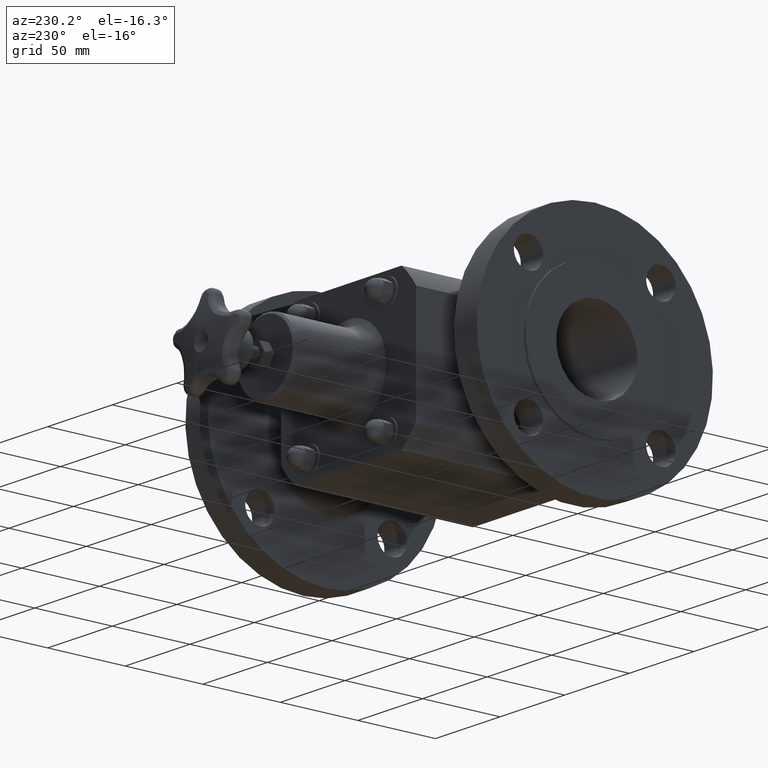
[diagram: clean part render]
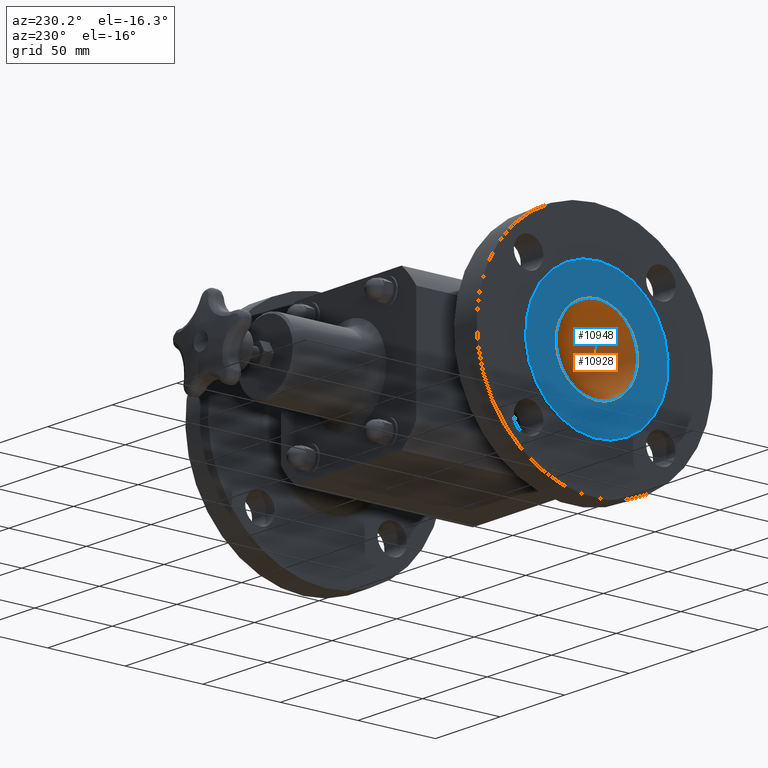
[diagram: same view with the hole feature highlighted: cylindrical wall and planar end face, labeled with their STEP entity ids]
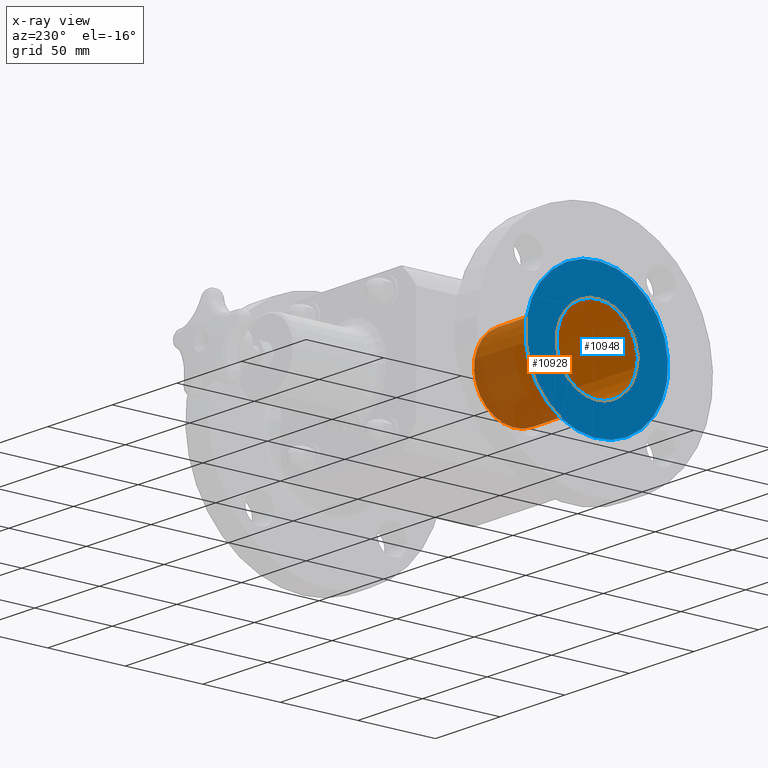
[diagram: x-ray of the same camera — body ghosted, the hole faces saturated]
A machine part, auxiliary view. The highlighted faces form one hole feature of diameter 52.5018 mm: the cylindrical wall (entity #10928, orange) and its adjacent planar end face (entity #10948, blue) — they share a circular edge in the B-rep.
The next image is the same camera in x-ray (body ghosted, the hole faces saturated) — the bore reads through the body.
Wall:
#79=CARTESIAN_POINT('',(-1.997499999999999,1.657028894562824,0.991694542592717));
#80=VERTEX_POINT('',#79);
#81=CARTESIAN_POINT('',(-1.997499999999998,1.948000000000030,-5.332906E-016));
#82=DIRECTION('',(-1.000000000000000,3.122502E-016,3.122502E-016));
#83=DIRECTION('',(-4.415885E-016,-0.707106781186553,-0.707106781186542));
#84=AXIS2_PLACEMENT_3D('',#81,#82,#83);
#85=CIRCLE('',#84,1.033500000000000);
#86=EDGE_CURVE('',#80,#80,#85,.T.);
#10909=CARTESIAN_POINT('',(-3.248750000009998,1.948000000000031,-5.332906E-016));
#10910=DIRECTION('',(-1.0,6.245005E-016,0.0));
#10911=DIRECTION('',(-1.758216E-016,-0.281539531142323,0.959549629984901));
#10912=AXIS2_PLACEMENT_3D('',#10909,#10910,#10911);
#10913=CYLINDRICAL_SURFACE('',#10912,1.033500000000000);
#10914=ORIENTED_EDGE('',*,*,#86,.F.);
#10915=EDGE_LOOP('',(#10914));
#10916=FACE_OUTER_BOUND('',#10915,.T.);
#10917=CARTESIAN_POINT('',(-4.500000000010299,1.657028894562826,0.991694542592717));
#10918=VERTEX_POINT('',#10917);
#10919=CARTESIAN_POINT('',(-4.500000000010298,1.948000000000032,-5.332906E-016));
#10920=DIRECTION('',(-1.000000000000000,3.122502E-016,3.122502E-016));
#10921=DIRECTION('',(-4.415885E-016,-0.707106781186553,-0.707106781186542));
#10922=AXIS2_PLACEMENT_3D('',#10919,#10920,#10921);
#10923=CIRCLE('',#10922,1.033500000000000);
#10924=EDGE_CURVE('',#10918,#10918,#10923,.T.);
#10925=ORIENTED_EDGE('',*,*,#10924,.T.);
#10926=EDGE_LOOP('',(#10925));
#10927=FACE_BOUND('',#10926,.T.);
#10928=ADVANCED_FACE('',(#10916,#10927),#10913,.F.);
End face:
#10917=CARTESIAN_POINT('',(-4.500000000010299,1.657028894562826,0.991694542592717));
#10918=VERTEX_POINT('',#10917);
#10919=CARTESIAN_POINT('',(-4.500000000010298,1.948000000000032,-5.332906E-016));
#10920=DIRECTION('',(-1.000000000000000,3.122502E-016,3.122502E-016));
#10921=DIRECTION('',(-4.415885E-016,-0.707106781186553,-0.707106781186542));
#10922=AXIS2_PLACEMENT_3D('',#10919,#10920,#10921);
#10923=CIRCLE('',#10922,1.033500000000000);
#10924=EDGE_CURVE('',#10918,#10918,#10923,.T.);
#10929=CARTESIAN_POINT('',(-4.500000000010298,2.678794858356322,-0.730794858356303));
#10930=DIRECTION('',(-1.0,0.0,0.0));
#10931=DIRECTION('',(0.0,0.707106781186553,0.707106781186542));
#10932=AXIS2_PLACEMENT_3D('',#10929,#10930,#10931);
#10933=PLANE('',#10932);
#10934=CARTESIAN_POINT('',(-4.500000000010298,2.457586551371864,-1.736784830280832));
#10935=VERTEX_POINT('',#10934);
#10936=CARTESIAN_POINT('',(-4.500000000010298,1.948000000000032,-5.332906E-016));
#10937=DIRECTION('',(-1.0,3.122502E-016,3.122502E-016));
#10938=DIRECTION('',(-4.415885E-016,-0.707106781186553,-0.707106781186542));
#10939=AXIS2_PLACEMENT_3D('',#10936,#10937,#10938);
#10940=CIRCLE('',#10939,1.810000000010001);
#10941=EDGE_CURVE('',#10935,#10935,#10940,.T.);
#10942=ORIENTED_EDGE('',*,*,#10941,.T.);
#10943=EDGE_LOOP('',(#10942));
#10944=FACE_OUTER_BOUND('',#10943,.T.);
#10945=ORIENTED_EDGE('',*,*,#10924,.F.);
#10946=EDGE_LOOP('',(#10945));
#10947=FACE_BOUND('',#10946,.T.);
#10948=ADVANCED_FACE('',(#10944,#10947),#10933,.T.);